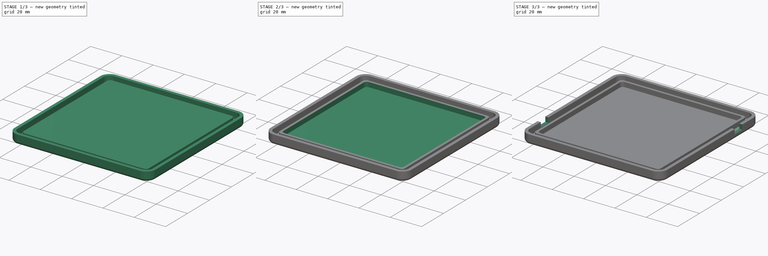
[diagram: build sequence overview — one tinted view per stage of 3, left to right]
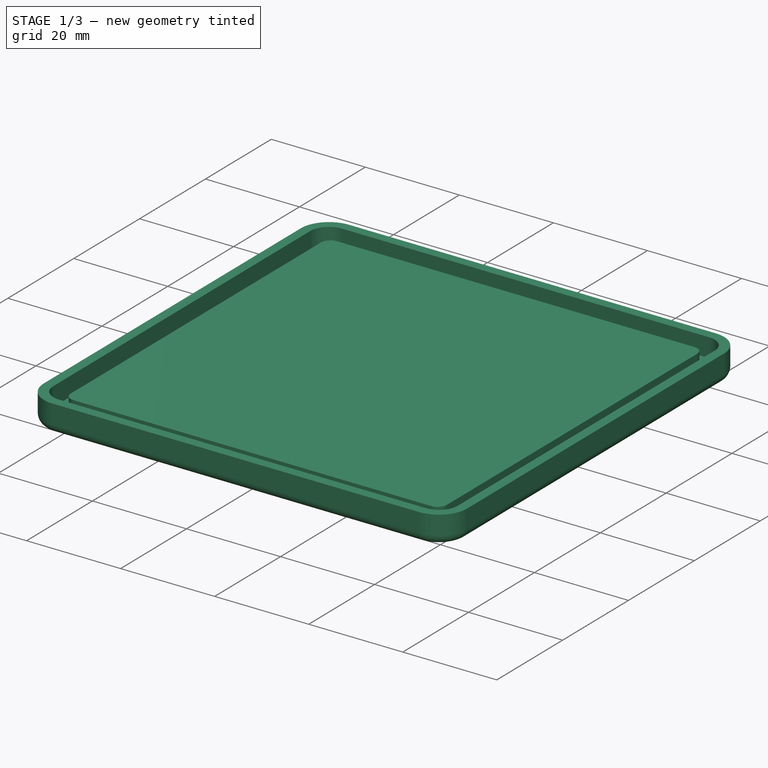
[diagram: stage 1 of 3 — iso view after this stage's code; geometry added in this stage tinted green]
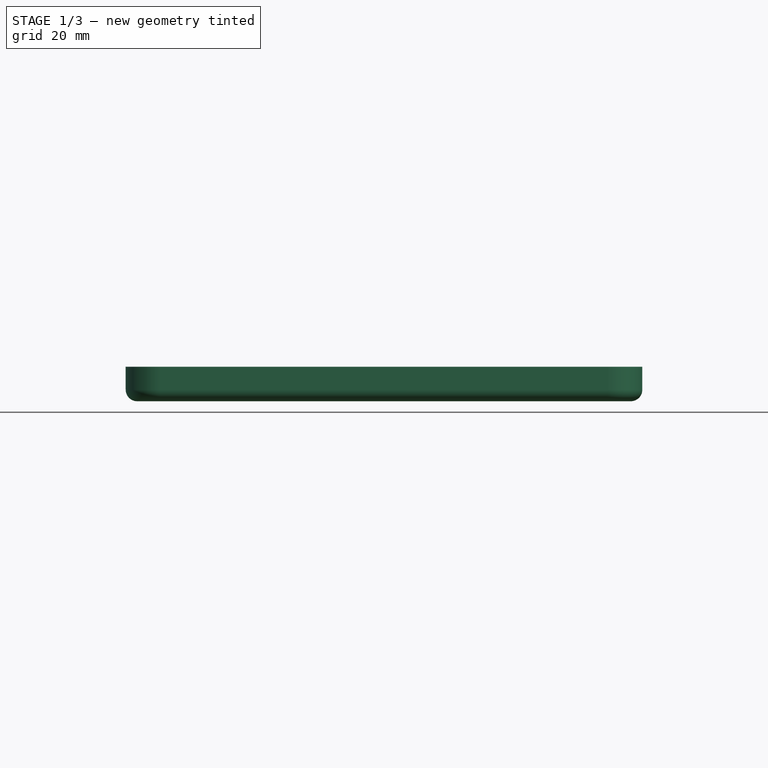
[diagram: stage 1 of 3 — front view after this stage's code; geometry added in this stage tinted green]
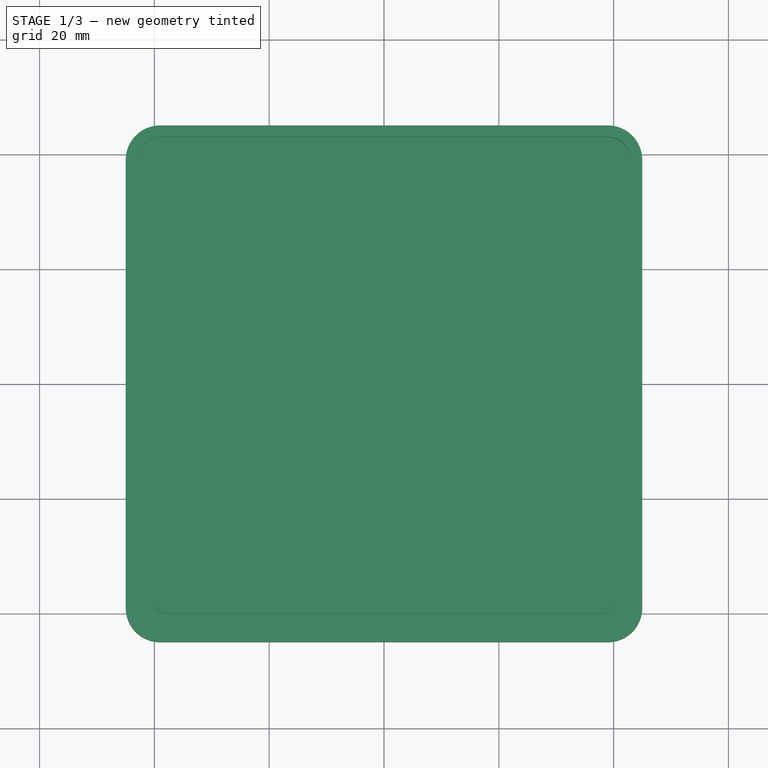
[diagram: stage 1 of 3 — top view after this stage's code; geometry added in this stage tinted green]
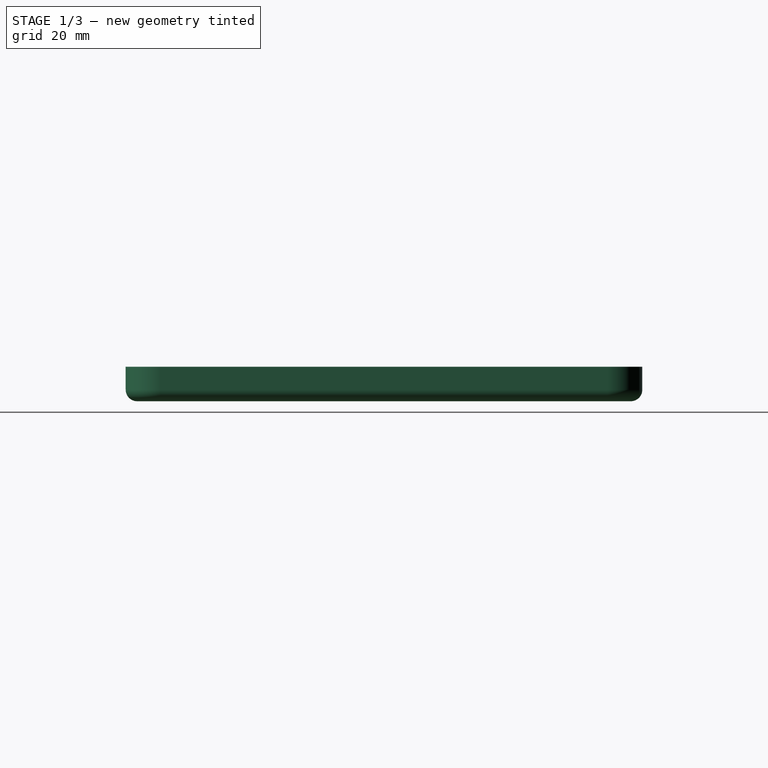
[diagram: stage 1 of 3 — right view after this stage's code; geometry added in this stage tinted green]
FCSTD DOCUMENT  (FreeCAD 0.15R4671 (Git))
Label: Tapa
License: All rights reserved
LicenseURL: http://en.wikipedia.org/wiki/All_rights_reserved
objects: Sketcher::SketchObject×4, PartDesign::Pad×2, PartDesign::Pocket×2, Part::MultiCommon×2, Part::Thickness×1, Part::MultiFuse×1
note: 16 computed .brp shape members not serialized (recipe doc carries the construction recipe); baked Part::Feature solids carry a one-line shape summary decoded from their .brp

FEATURE [Sketcher::SketchObject] Sketch
  sketch-geometry (8):
    g0: LineSegment StartX=-39 StartY=43 StartZ=0 EndX=39 EndY=43 EndZ=0
    g1: LineSegment StartX=43 StartY=39 StartZ=0 EndX=43 EndY=-39 EndZ=0
    g2: LineSegment StartX=39 StartY=-43 StartZ=0 EndX=-39 EndY=-43 EndZ=0
    g3: LineSegment StartX=-43 StartY=-39 StartZ=0 EndX=-43 EndY=39 EndZ=0
    g4: ArcOfCircle CenterX=-39 CenterY=39 CenterZ=0 NormalX=0 NormalY=0 NormalZ=1 Radius=4 StartAngle=1.5708 EndAngle=3.14159
    g5: ArcOfCircle CenterX=-39 CenterY=-39 CenterZ=0 NormalX=0 NormalY=0 NormalZ=1 Radius=4 StartAngle=3.14159 EndAngle=4.71239
    g6: ArcOfCircle CenterX=39 CenterY=39 CenterZ=0 NormalX=0 NormalY=0 NormalZ=1 Radius=4 StartAngle=0 EndAngle=1.5708
    g7: ArcOfCircle CenterX=39 CenterY=-39 CenterZ=0 NormalX=0 NormalY=0 NormalZ=1 Radius=4 StartAngle=4.71239 EndAngle=6.28319
  constraints (20):
    c: Horizontal(g0)
    c: Horizontal(g2)
    c: Vertical(g1)
    c: Vertical(g3)
    c: Equal(g0,g1)
    c: Tangent(g0,g4) = 1.5708
    c: Tangent(g3,g4) = 1.5708
    c: Tangent(g3,g5) = 1.5708
    c: Tangent(g2,g5) = 1.5708
    c: Equal(g4,g5)
    c: Radius(g4) = 4
    c: Symmetric(g5,g4,g-1)
    c: Tangent(g0,g6) = 1.5708
    c: Tangent(g1,g6) = 1.5708
    c: Tangent(g2,g7) = 1.5708
    c: Tangent(g1,g7) = 1.5708
    c: Equal(g4,g6)
    c: Equal(g6,g7)
    c: Symmetric(g4,g6,g-2)
    c: DistanceY(g0,g2) = -86
FEATURE [PartDesign::Pad] Pad
  Length = 4
  Length2 = 100
  Sketch = -> Sketch
  Type = 0
FEATURE [Part::Thickness] Thickness
  Faces = -> Pad [Face10]
  Intersection = false
  Join = 0
  Mode = 0
  SelfIntersection = false
  Value = 2
FEATURE [Sketcher::SketchObject] Sketch001
  Support = -> Thickness [Face9]
  sketch-geometry (8):
    g0: LineSegment StartX=-38 StartY=40 StartZ=0 EndX=38 EndY=40 EndZ=0
    g1: LineSegment StartX=40 StartY=38 StartZ=0 EndX=40 EndY=-38 EndZ=0
    g2: LineSegment StartX=38 StartY=-40 StartZ=0 EndX=-38 EndY=-40 EndZ=0
    g3: LineSegment StartX=-40 StartY=-38 StartZ=0 EndX=-40 EndY=38 EndZ=0
    g4: ArcOfCircle CenterX=38 CenterY=38 CenterZ=0 NormalX=0 NormalY=0 NormalZ=1 Radius=2 StartAngle=0 EndAngle=1.5708
    g5: ArcOfCircle CenterX=38 CenterY=-38 CenterZ=0 NormalX=0 NormalY=0 NormalZ=1 Radius=2 StartAngle=4.71239 EndAngle=6.28319
    g6: ArcOfCircle CenterX=-38 CenterY=-38 CenterZ=0 NormalX=0 NormalY=0 NormalZ=1 Radius=2 StartAngle=3.14159 EndAngle=4.71239
    g7: ArcOfCircle CenterX=-38 CenterY=38 CenterZ=0 NormalX=0 NormalY=0 NormalZ=1 Radius=2 StartAngle=1.5708 EndAngle=3.14159
  constraints (20):
    c: Horizontal(g0)
    c: Horizontal(g2)
    c: Vertical(g1)
    c: Vertical(g3)
    c: Tangent(g0,g4) = 1.5708
    c: Tangent(g1,g4) = 1.5708
    c: Tangent(g1,g5) = 1.5708
    c: Tangent(g2,g5) = 1.5708
    c: Tangent(g2,g6) = 1.5708
    c: Tangent(g3,g6) = 1.5708
    c: Tangent(g3,g7) = 1.5708
    c: Tangent(g0,g7) = 1.5708
    c: Equal(g7,g4)
    c: Equal(g4,g5)
    c: Equal(g5,g6)
    c: Radius(g4) = 2
    c: Equal(g0,g1)
    c: Symmetric(g7,g4,g-2)
    c: Symmetric(g5,g4,g-1)
    c: DistanceY(g0,g2) = -80
FEATURE [PartDesign::Pad] Pad001
  Length = 3
  Length2 = 100
  Sketch = -> Sketch001
  Type = 0
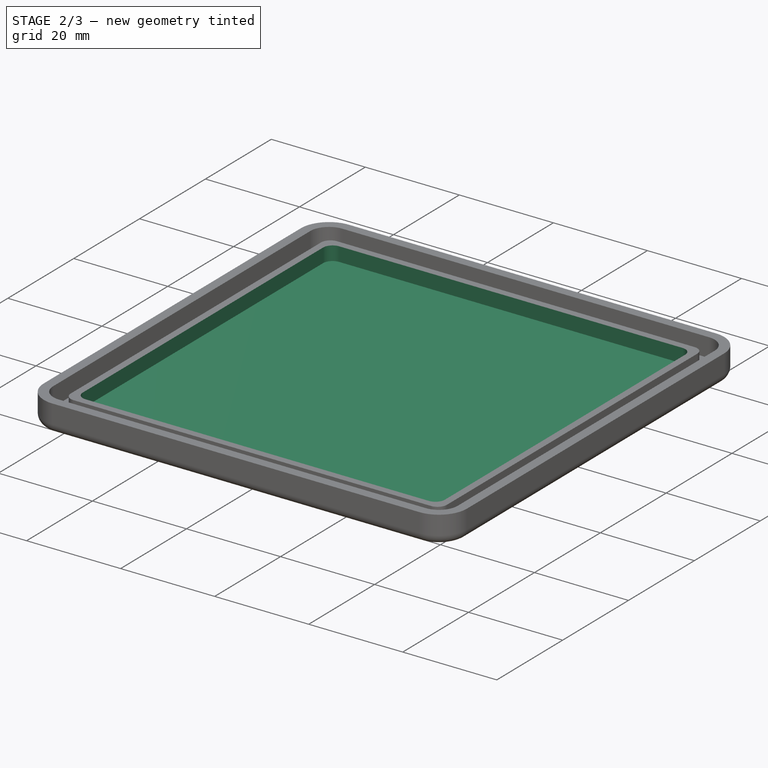
[diagram: stage 2 of 3 — iso view after this stage's code; geometry added in this stage tinted green]
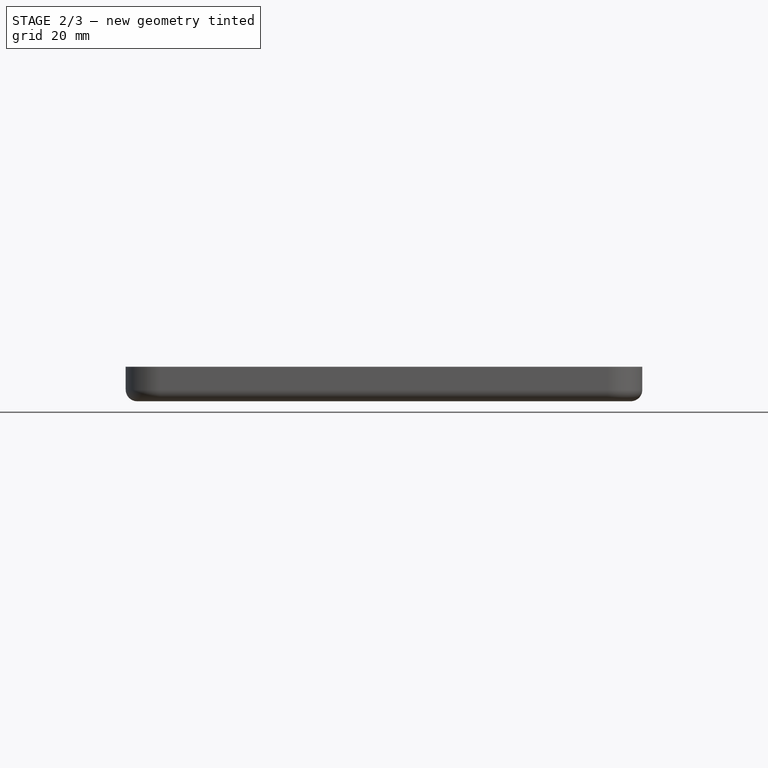
[diagram: stage 2 of 3 — front view after this stage's code; geometry added in this stage tinted green]
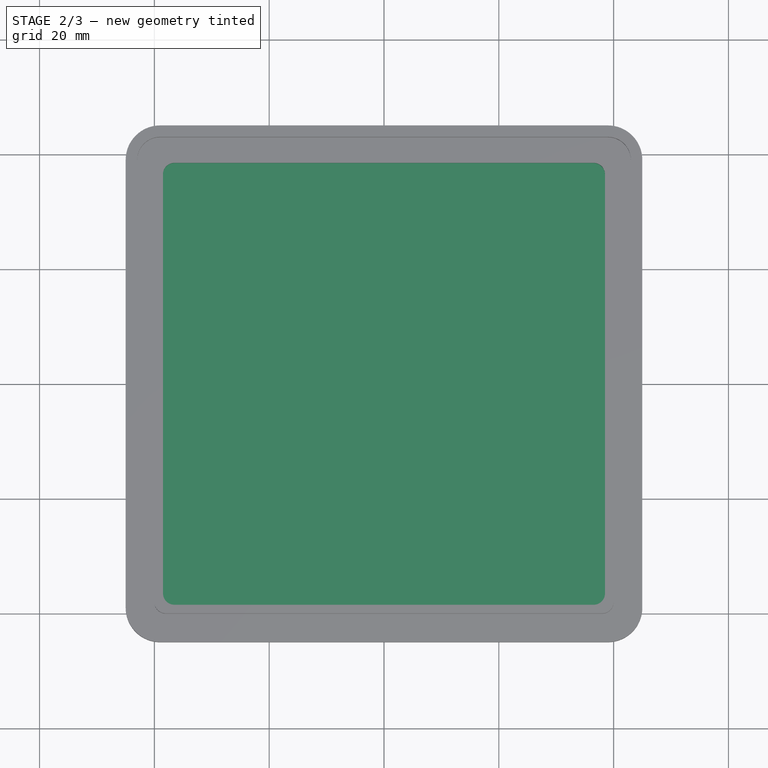
[diagram: stage 2 of 3 — top view after this stage's code; geometry added in this stage tinted green]
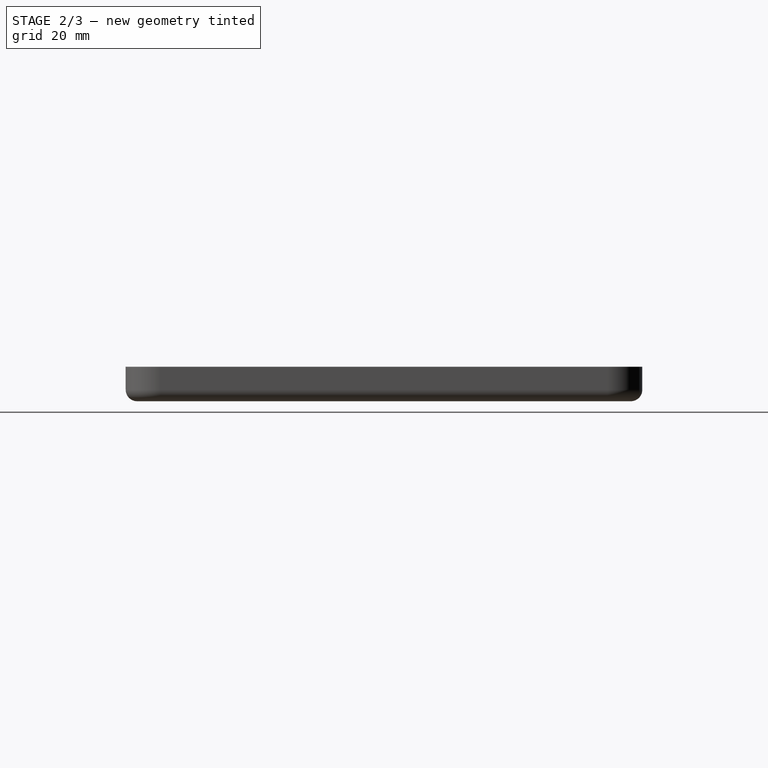
[diagram: stage 2 of 3 — right view after this stage's code; geometry added in this stage tinted green]
FEATURE [Part::MultiFuse] Fusion
  Shapes = -> [Pad001,Thickness]
FEATURE [Sketcher::SketchObject] Sketch002
  Placement = pos=(0,0,3) rot=(0,0,1;0rad)
  Support = -> Fusion [Face1]
  sketch-geometry (8):
    g0: LineSegment StartX=-36.5 StartY=38.5 StartZ=0 EndX=36.5 EndY=38.5 EndZ=0
    g1: LineSegment StartX=38.5 StartY=36.5 StartZ=0 EndX=38.5 EndY=-36.5 EndZ=0
    g2: LineSegment StartX=36.5 StartY=-38.5 StartZ=0 EndX=-36.5 EndY=-38.5 EndZ=0
    g3: LineSegment StartX=-38.5 StartY=-36.5 StartZ=0 EndX=-38.5 EndY=36.5 EndZ=0
    g4: ArcOfCircle CenterX=36.5 CenterY=36.5 CenterZ=0 NormalX=0 NormalY=0 NormalZ=1 Radius=2 StartAngle=0 EndAngle=1.5708
    g5: ArcOfCircle CenterX=36.5 CenterY=-36.5 CenterZ=0 NormalX=0 NormalY=0 NormalZ=1 Radius=2 StartAngle=4.71239 EndAngle=6.28319
    g6: ArcOfCircle CenterX=-36.5 CenterY=-36.5 CenterZ=0 NormalX=0 NormalY=0 NormalZ=1 Radius=2 StartAngle=3.14159 EndAngle=4.71239
    g7: ArcOfCircle CenterX=-36.5 CenterY=36.5 CenterZ=0 NormalX=0 NormalY=0 NormalZ=1 Radius=2 StartAngle=1.5708 EndAngle=3.14159
  constraints (20):
    c: Horizontal(g0)
    c: Horizontal(g2)
    c: Vertical(g1)
    c: Vertical(g3)
    c: Tangent(g0,g4) = 1.5708
    c: Tangent(g1,g4) = 1.5708
    c: Tangent(g1,g5) = 1.5708
    c: Tangent(g2,g5) = 1.5708
    c: Tangent(g2,g6) = 1.5708
    c: Tangent(g3,g6) = 1.5708
    c: Tangent(g3,g7) = 1.5708
    c: Tangent(g0,g7) = 1.5708
    c: Equal(g7,g4)
    c: Equal(g4,g5)
    c: Equal(g5,g6)
    c: Radius(g4) = 2
    c: Equal(g0,g1)
    c: Symmetric(g7,g4,g-2)
    c: Symmetric(g5,g4,g-1)
    c: DistanceY(g0,g2) = -77
FEATURE [PartDesign::Pocket] Pocket
  Length = 3
  Sketch = -> Sketch002
  Type = 0
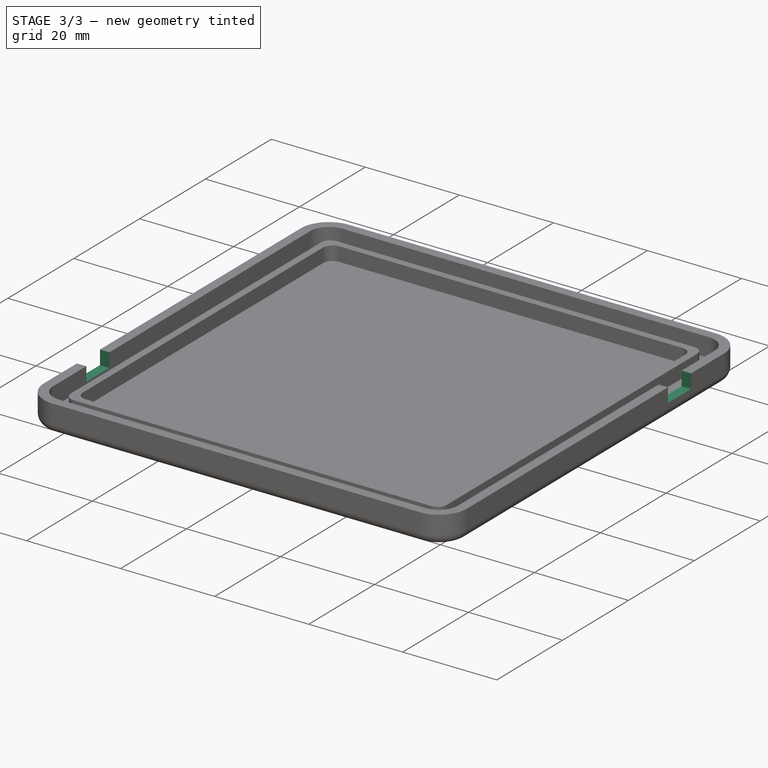
[diagram: stage 3 of 3 — iso view after this stage's code; geometry added in this stage tinted green]
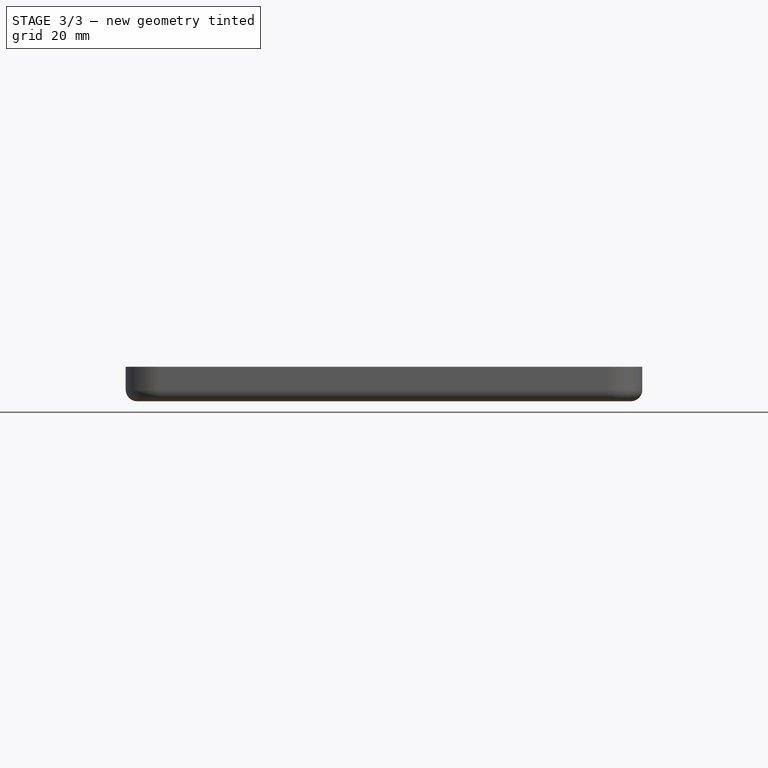
[diagram: stage 3 of 3 — front view after this stage's code; geometry added in this stage tinted green]
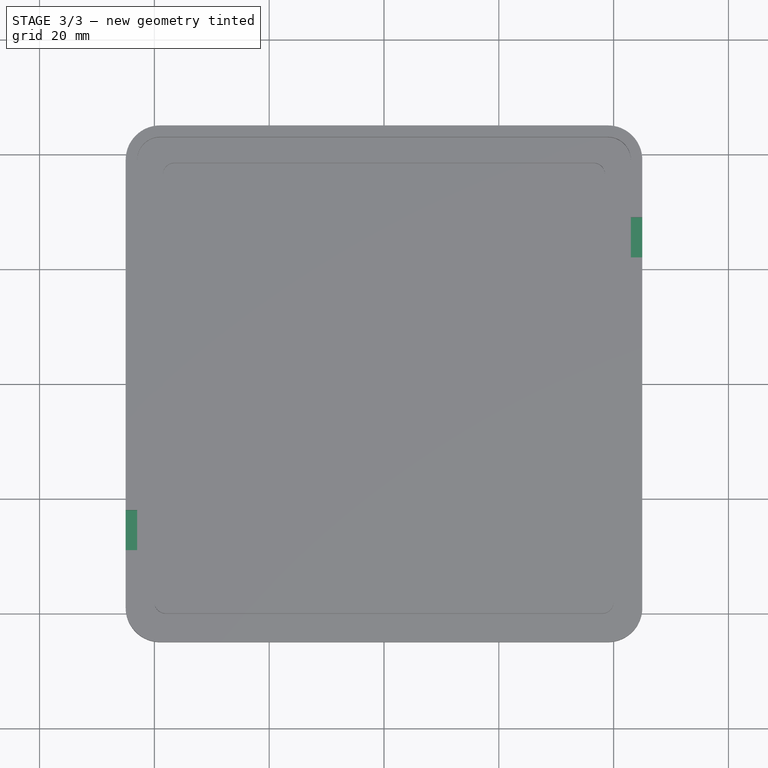
[diagram: stage 3 of 3 — top view after this stage's code; geometry added in this stage tinted green]
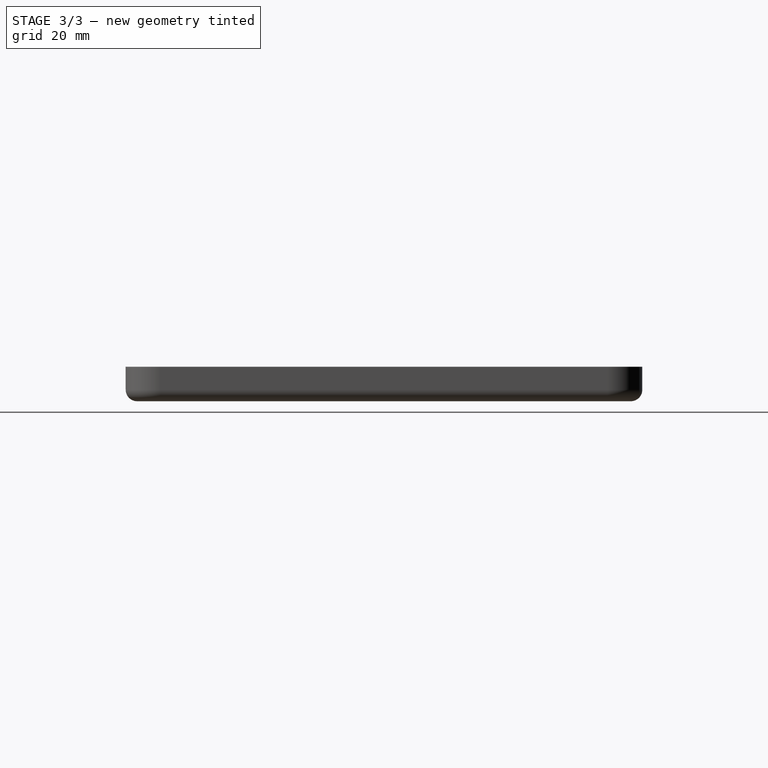
[diagram: stage 3 of 3 — right view after this stage's code; geometry added in this stage tinted green]
FEATURE [Part::MultiCommon] Common
  Shapes = -> [Fusion,Pocket]
FEATURE [Sketcher::SketchObject] Sketch003
  ExternalGeometry = -> [Common]
  Placement = pos=(0,0,4) rot=(0,0,1;0rad)
  Support = -> Common [Face28]
  sketch-geometry (8):
    g0: LineSegment StartX=43 StartY=29 StartZ=0 EndX=45 EndY=29 EndZ=0
    g1: LineSegment StartX=45 StartY=29 StartZ=0 EndX=45 EndY=22 EndZ=0
    g2: LineSegment StartX=45 StartY=22 StartZ=0 EndX=43 EndY=22 EndZ=0
    g3: LineSegment StartX=43 StartY=22 StartZ=0 EndX=43 EndY=29 EndZ=0
    g4: LineSegment StartX=-45 StartY=-22 StartZ=0 EndX=-43 EndY=-22 EndZ=0
    g5: LineSegment StartX=-43 StartY=-22 StartZ=0 EndX=-43 EndY=-29 EndZ=0
    g6: LineSegment StartX=-43 StartY=-29 StartZ=0 EndX=-45 EndY=-29 EndZ=0
    g7: LineSegment StartX=-45 StartY=-29 StartZ=0 EndX=-45 EndY=-22 EndZ=0
  constraints (24):
    c: Coincident(g0,g1)
    c: Coincident(g1,g2)
    c: Coincident(g2,g3)
    c: Coincident(g3,g0)
    c: Horizontal(g0)
    c: Horizontal(g2)
    c: Vertical(g1)
    c: Vertical(g3)
    c: Coincident(g4,g5)
    c: Coincident(g5,g6)
    c: Coincident(g6,g7)
    c: Coincident(g7,g4)
    c: Horizontal(g4)
    c: Horizontal(g6)
    c: Vertical(g5)
    c: Vertical(g7)
    c: Perpendicular(g4,g-4) = 1.5708
    c: Perpendicular(g0,g-3) = 4.71239
    c: Equal(g4,g0)
    c: Equal(g7,g1)
    c: DistanceX(g0) = 2
    c: DistanceY(g1) = -7
    c: DistanceY(g-3,g0) = -10
    c: DistanceY(g-4,g6) = 10
FEATURE [PartDesign::Pocket] Pocket001
  Length = 3
  Sketch = -> Sketch003
  Type = 0
FEATURE [Part::MultiCommon] Common001
  Shapes = -> [Common,Pocket001]
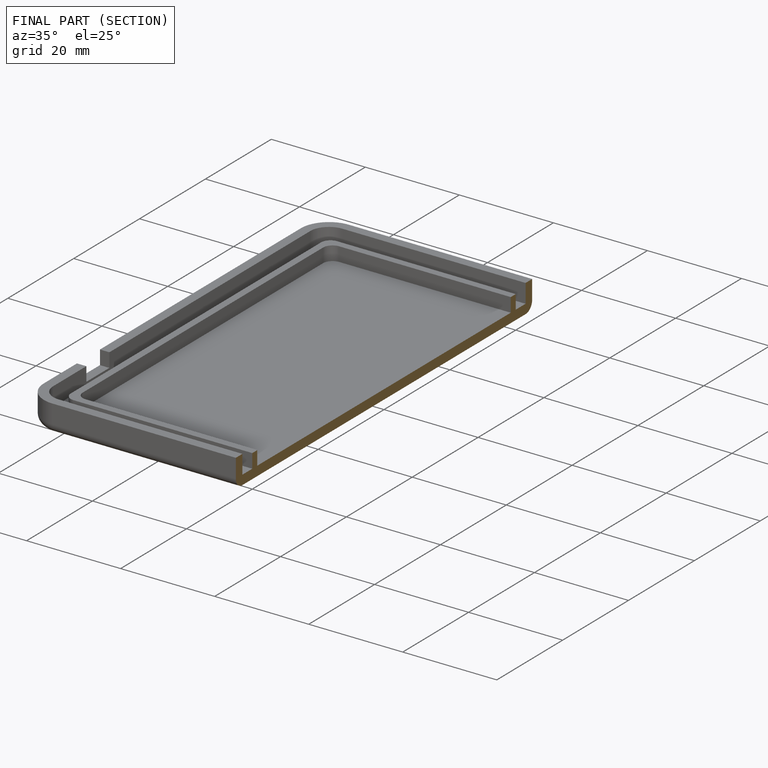
[diagram: finished part — half-section view (interior)]
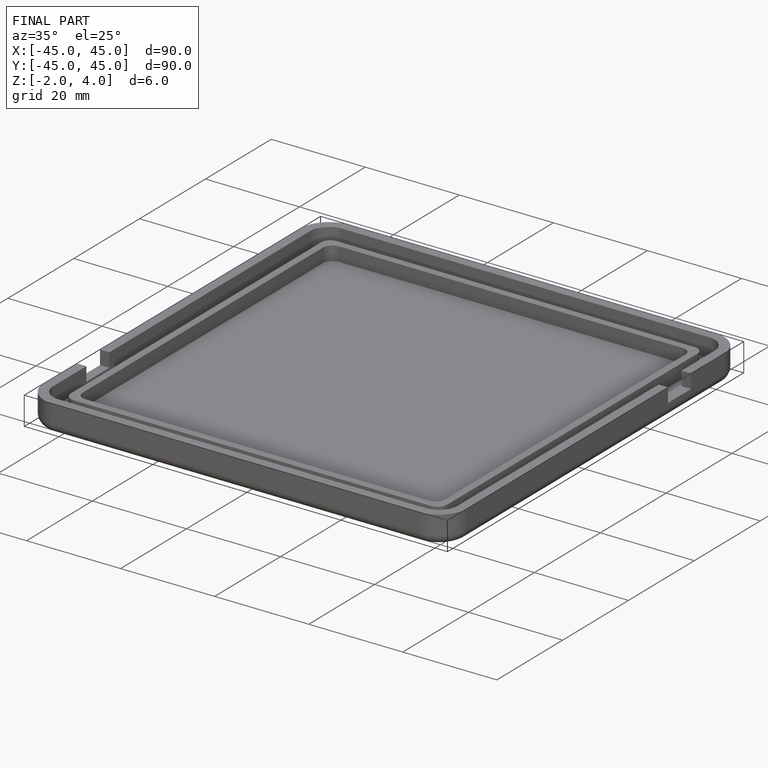
[diagram: finished part — iso view with bounding-box wireframe]
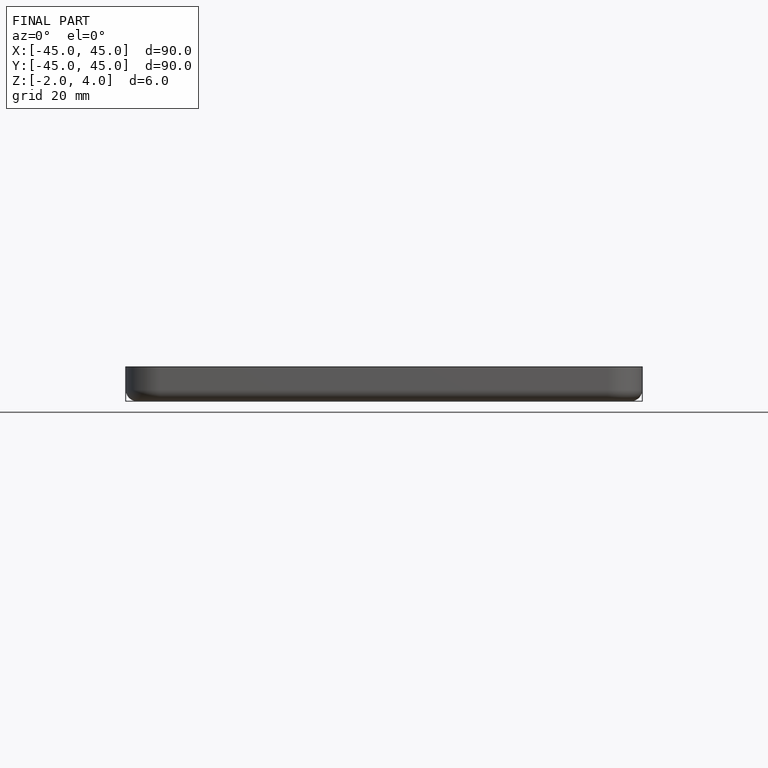
[diagram: finished part — front view with bounding-box wireframe]
